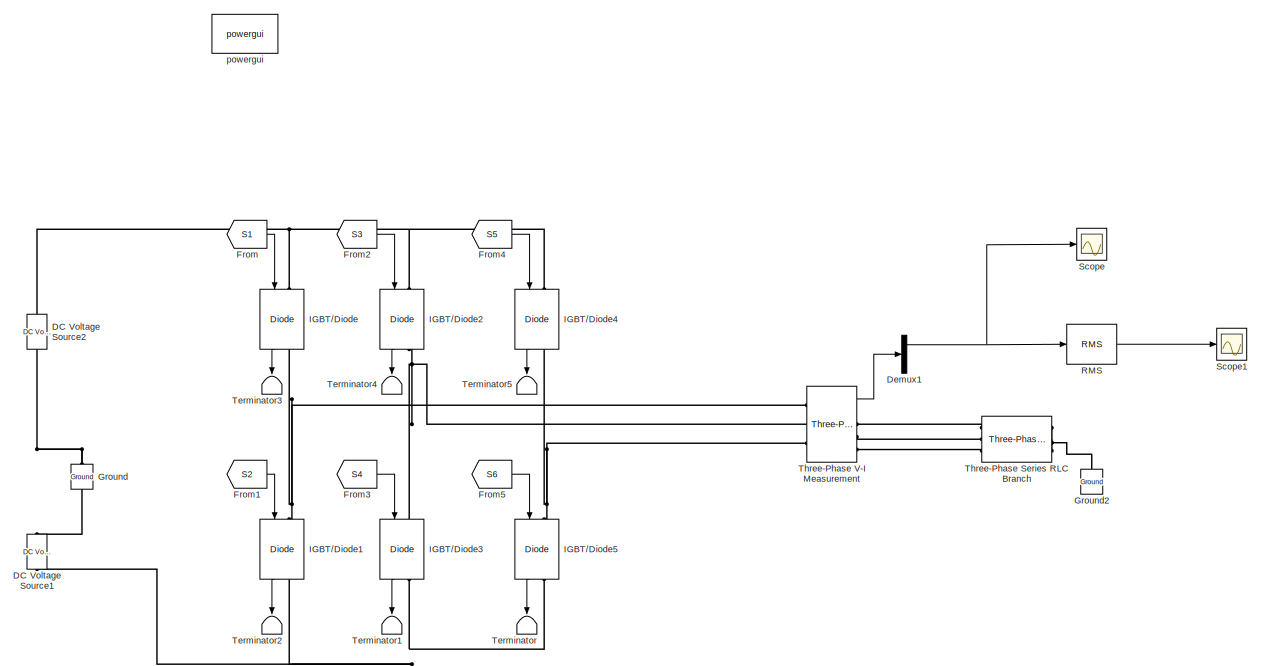
[diagram: root canvas - part 1/2, right side, full height]
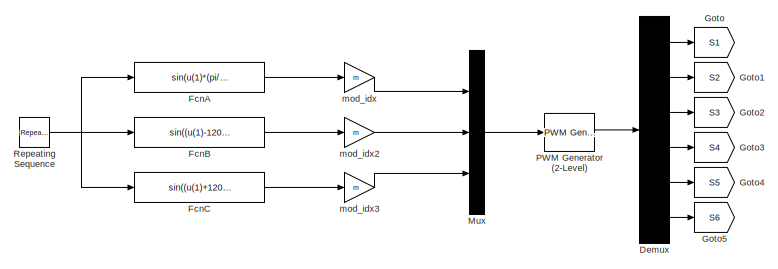
[diagram: root canvas - part 2/2, middle left region]
MODEL slx_2fe31646a321
KIND model
BLOCK [Reference] DC Voltage Source1  REF=powerlib/Electrical
Sources/DC Voltage Source
  Amplitude = 200
  Measurements = None
  Ports = [0, 0, 0, 0, 0, 1, 1]
  SourceBlock = powerlib/Electrical\nSources/DC Voltage Source
  SourceType = DC Voltage Source
BLOCK [Reference] DC Voltage Source2  REF=powerlib/Electrical
Sources/DC Voltage Source
  Amplitude = 200
  Measurements = None
  Ports = [0, 0, 0, 0, 0, 1, 1]
  SourceBlock = powerlib/Electrical\nSources/DC Voltage Source
  SourceType = DC Voltage Source
BLOCK [Demux] Demux
  DisplayOption = bar
  Outputs = 6
  Ports = [1, 6]
BLOCK [Demux] Demux1
  DisplayOption = bar
  Outputs = 3
  Ports = [1, 3]
BLOCK [Fcn] FcnA
  Expr = sin(u(1)*(pi/180))
BLOCK [Fcn] FcnB
  Expr = sin((u(1)-120)*(pi/180))
BLOCK [Fcn] FcnC
  Expr = sin((u(1)+120)*(pi/180))
BLOCK [From] From
  GotoTag = S1
BLOCK [From] From1
  GotoTag = S2
BLOCK [From] From2
  GotoTag = S3
BLOCK [From] From3
  GotoTag = S4
BLOCK [From] From4
  GotoTag = S5
BLOCK [From] From5
  GotoTag = S6
BLOCK [Goto] Goto
  GotoTag = S1
BLOCK [Goto] Goto1
  GotoTag = S2
BLOCK [Goto] Goto2
  GotoTag = S3
BLOCK [Goto] Goto3
  GotoTag = S4
BLOCK [Goto] Goto4
  GotoTag = S5
BLOCK [Goto] Goto5
  GotoTag = S6
BLOCK [Reference] Ground  REF=powerlib/Elements/Ground
  LConnTagsString = a
  Ports = [0, 0, 0, 0, 0, 1]
  SourceBlock = powerlib/Elements/Ground
  SourceType = Ground
BLOCK [Reference] Ground2  REF=powerlib/Elements/Ground
  LConnTagsString = a
  Ports = [0, 0, 0, 0, 0, 1]
  SourceBlock = powerlib/Elements/Ground
  SourceType = Ground
BLOCK [Reference] IGBT//Diode  REF=powerlib/Power
Electronics/IGBT//Diode
  Cs = inf
  Measurements = on
  Ports = [1, 1, 0, 0, 0, 1, 1]
  Ron = 1e-3
  Rs = 1e5
  SourceBlock = powerlib/Power\nElectronics/IGBT//Diode
  SourceType = IGBT/Diode
BLOCK [Reference] IGBT//Diode1  REF=powerlib/Power
Electronics/IGBT//Diode
  Cs = inf
  Measurements = on
  Ports = [1, 1, 0, 0, 0, 1, 1]
  Ron = 1e-3
  Rs = 1e5
  SourceBlock = powerlib/Power\nElectronics/IGBT//Diode
  SourceType = IGBT/Diode
BLOCK [Reference] IGBT//Diode2  REF=powerlib/Power
Electronics/IGBT//Diode
  Cs = inf
  Measurements = on
  Ports = [1, 1, 0, 0, 0, 1, 1]
  Ron = 1e-3
  Rs = 1e5
  SourceBlock = powerlib/Power\nElectronics/IGBT//Diode
  SourceType = IGBT/Diode
BLOCK [Reference] IGBT//Diode3  REF=powerlib/Power
Electronics/IGBT//Diode
  Cs = inf
  Measurements = on
  Ports = [1, 1, 0, 0, 0, 1, 1]
  Ron = 1e-3
  Rs = 1e5
  SourceBlock = powerlib/Power\nElectronics/IGBT//Diode
  SourceType = IGBT/Diode
BLOCK [Reference] IGBT//Diode4  REF=powerlib/Power
Electronics/IGBT//Diode
  Cs = inf
  Measurements = on
  Ports = [1, 1, 0, 0, 0, 1, 1]
  Ron = 1e-3
  Rs = 1e5
  SourceBlock = powerlib/Power\nElectronics/IGBT//Diode
  SourceType = IGBT/Diode
BLOCK [Reference] IGBT//Diode5  REF=powerlib/Power
Electronics/IGBT//Diode
  Cs = inf
  Measurements = on
  Ports = [1, 1, 0, 0, 0, 1, 1]
  Ron = 1e-3
  Rs = 1e5
  SourceBlock = powerlib/Power\nElectronics/IGBT//Diode
  SourceType = IGBT/Diode
BLOCK [Mux] Mux
  DisplayOption = bar
  Inputs = 3
  Ports = [3, 1]
BLOCK [Reference] PWM Generator (2-Level)  REF=powerlib_meascontrol/Pulse & Signal
Generators/PWM Generator
(2-Level)
  Fc = 27*50
  Freq = 50
  ModulatingSignals = off
  ModulatorMode = Unsynchronized
  ModulatorType = Three-phase bridge (6 pulses)
  Phase = 0
  Ports = [1, 1]
  SourceBlock = powerlib_meascontrol/Pulse & Signal\nGenerators/PWM Generator\n(2-Level)
  SourceType = PWM Generator (2-Level)
  Ts = 0
  m = 1
  nF = 27
BLOCK [Reference] RMS  REF=powerlib_meascontrol/Measurements/RMS
  Freq = 60
  Ports = [1, 1]
  RMSInit = 120
  SourceBlock = powerlib_meascontrol/Measurements/RMS
  SourceType = RMS
  TrueRMS = on
  Ts = 0
BLOCK [Reference] Repeating Sequence  REF=simulink/Sources/Repeating
Sequence
  Ports = [0, 1]
  SourceBlock = simulink/Sources/Repeating\nSequence
  SourceType = Repeating table
  rep_seq_t = [0 1/50]
  rep_seq_y = [0 360]
BLOCK [Scope] Scope
  DataFormat = StructureWithTime
  Floating = off
  LimitDataPoints = off
  NumInputPorts = 1
  Ports = [1]
  SampleTime = 0
  ShowLegends = off
  YMax = 225
  YMin = -225
  ZoomMode = xonly
BLOCK [Scope] Scope1
  DataFormat = StructureWithTime
  Floating = off
  LimitDataPoints = off
  NumInputPorts = 1
  Ports = [1]
  SampleTime = 0
  SaveName = ScopeData1
  ShowLegends = off
  ZoomMode = yonly
BLOCK [Terminator] Terminator
BLOCK [Terminator] Terminator1
BLOCK [Terminator] Terminator2
BLOCK [Terminator] Terminator3
BLOCK [Terminator] Terminator4
BLOCK [Terminator] Terminator5
BLOCK [Reference] Three-Phase Series RLC Branch  REF=powerlib/Elements/Three-Phase
Series RLC Branch
  AttributesFormatString = \n
  BranchType = RLC
  Capacitance = 1e-6
  Inductance = 100e-3
  LConnTagsString = A|B|C
  Measurements = None
  Ports = [0, 0, 0, 0, 0, 3, 3]
  RConnTagsString = A|B|C
  Resistance = 10
  SourceBlock = powerlib/Elements/Three-Phase\nSeries RLC Branch
  SourceType = Three-Phase Series RLC Branch
BLOCK [Reference] Three-Phase V-I Measurement  REF=powerlib/Measurements/Three-Phase
V-I Measurement
  CurrentMeasurement = yes
  Ipu = off
  LabelI = Iabc
  LabelV = Vabc
  OutputType = Complex
  PSBequivalent = 0
  Pbase = 100e6
  PhasorSimulation = off
  Ports = [0, 2, 0, 0, 0, 3, 3]
  SetLabelI = off
  SetLabelV = off
  SourceBlock = powerlib/Measurements/Three-Phase\nV-I Measurement
  SourceType = Three-Phase VI Measurement
  Vbase = 500e3
  VoltageMeasurement = phase-to-ground
  Vpu = off
  VpuLL = off
BLOCK [Gain] mod_idx 
  Gain = m
  OutDataTypeStr = Inherit: Inherit via internal rule
  ParamDataTypeStr = Inherit: Inherit via internal rule
  SaturateOnIntegerOverflow = off
BLOCK [Gain] mod_idx2
  Gain = m
  OutDataTypeStr = Inherit: Inherit via internal rule
  ParamDataTypeStr = Inherit: Inherit via internal rule
  SaturateOnIntegerOverflow = off
BLOCK [Gain] mod_idx3
  Gain = m
  OutDataTypeStr = Inherit: Inherit via internal rule
  ParamDataTypeStr = Inherit: Inherit via internal rule
  SaturateOnIntegerOverflow = off
BLOCK [Reference] powergui  REF=powerlib/powergui
  DisableRonSwitches = off
  DisableSnubberDevices = off
  DisableVfSwitches = off
  DisplayEquations = off
  DisplayStyle = 1
  EnableUseOfTLC = off
  ErrMax = 1e-4
  Frange = [0:2:500]
  FreqAxis = off
  FunctionMessages = off
  HookPort = off
  Interpol = off
  Iterations = 50
  MaxFrequency = 1000
  Pbase = 100e6
  Ports = []
  Priority = 1
  ResistiveCurrentMeasurement = off
  RestoreLinks = warning
  RmsSteady = 1
  SPID = off
  SampleTime = 50e-6
  ShowGrid = off
  SolverType = Tustin
  SourceBlock = powerlib/powergui
  SourceType = PSB option menu block
  StartTime = 0.0
  SwTol = 0
  Ts = 0
  UnitsV = kV
  UnitsW = MW
  UserDataPersistent = on
  Xlog = on
  Ylog = off
  ZoomFFT = off
  cycles = 1
  display = off
  echomessages = off
  frequency = 60
  frequencyindice = 0
  frequencyindicesteady = 1
  fundamental = 60
  methode = off
  save = off
  variable = ZData
  x0status = blocks
NET Demux1:1 -> RMS:1, Scope:1
LINE Demux:1 -> Goto:1
LINE Demux:2 -> Goto1:1
LINE Demux:3 -> Goto2:1
LINE Demux:4 -> Goto3:1
LINE Demux:5 -> Goto4:1
LINE Demux:6 -> Goto5:1
LINE FcnA:1 -> mod_idx :1
LINE FcnB:1 -> mod_idx2:1
LINE FcnC:1 -> mod_idx3:1
LINE From1:1 -> IGBT//Diode1:1
LINE From2:1 -> IGBT//Diode2:1
LINE From3:1 -> IGBT//Diode3:1
LINE From4:1 -> IGBT//Diode4:1
LINE From5:1 -> IGBT//Diode5:1
LINE From:1 -> IGBT//Diode:1
LINE IGBT//Diode1:1 -> Terminator2:1
LINE IGBT//Diode2:1 -> Terminator4:1
LINE IGBT//Diode3:1 -> Terminator1:1
LINE IGBT//Diode4:1 -> Terminator5:1
LINE IGBT//Diode5:1 -> Terminator:1
LINE IGBT//Diode:1 -> Terminator3:1
LINE Mux:1 -> PWM Generator (2-Level):1
LINE PWM Generator (2-Level):1 -> Demux:1
LINE RMS:1 -> Scope1:1
NET Repeating Sequence:1 -> FcnA:1, FcnB:1, FcnC:1
LINE Three-Phase V-I Measurement:1 -> Demux1:1
LINE mod_idx :1 -> Mux:1
LINE mod_idx2:1 -> Mux:2
LINE mod_idx3:1 -> Mux:3
PNET net1: DC Voltage Source1:LConn1 -- IGBT//Diode1:RConn1 -- IGBT//Diode3:RConn1 -- IGBT//Diode5:RConn1
PNET net2: DC Voltage Source1:RConn1 -- DC Voltage Source2:LConn1 -- Ground:LConn1
PNET net3: DC Voltage Source2:RConn1 -- IGBT//Diode2:LConn1 -- IGBT//Diode4:LConn1 -- IGBT//Diode:LConn1
PNET net4: Ground2:LConn1 -- Three-Phase Series RLC Branch:RConn1 -- Three-Phase Series RLC Branch:RConn2 -- Three-Phase Series RLC Branch:RConn3
PNET net5: IGBT//Diode1:LConn1 -- IGBT//Diode:RConn1 -- Three-Phase V-I Measurement:LConn1
PNET net6: IGBT//Diode2:RConn1 -- IGBT//Diode3:LConn1 -- Three-Phase V-I Measurement:LConn2
PNET net7: IGBT//Diode4:RConn1 -- IGBT//Diode5:LConn1 -- Three-Phase V-I Measurement:LConn3
PLINE Three-Phase Series RLC Branch:LConn1 -- Three-Phase V-I Measurement:RConn1
PLINE Three-Phase Series RLC Branch:LConn2 -- Three-Phase V-I Measurement:RConn2
PLINE Three-Phase Series RLC Branch:LConn3 -- Three-Phase V-I Measurement:RConn3
note: NET lines group one-source signal fan-out (src -> all destinations, sorted); 1:1 wires keep LINE; PNET lines group multi-terminal physical nets as a canonical sorted terminal list (undirected conserving connections); 2-terminal nets keep the pairwise PLINE form
